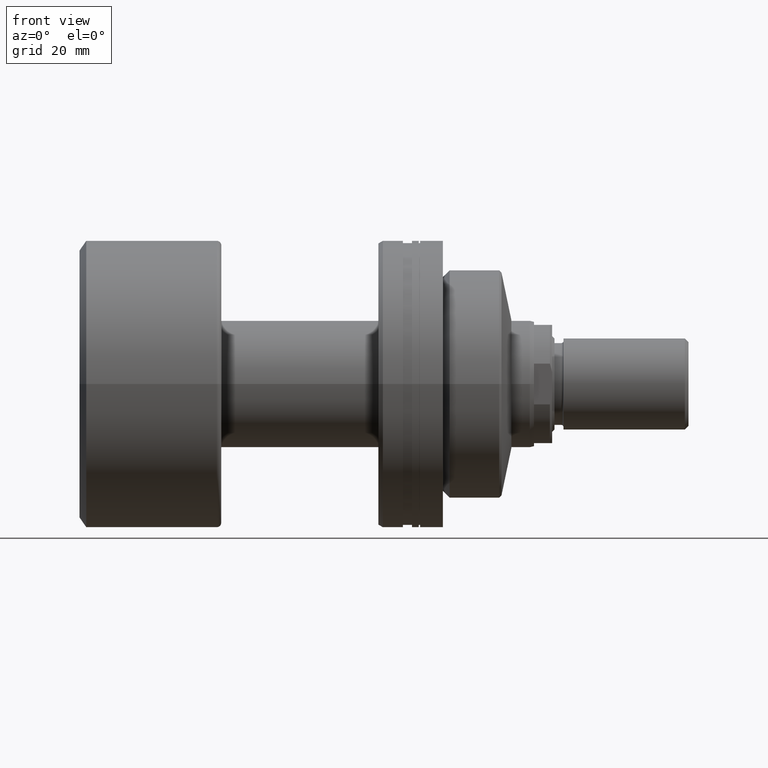
[diagram: clean part render]
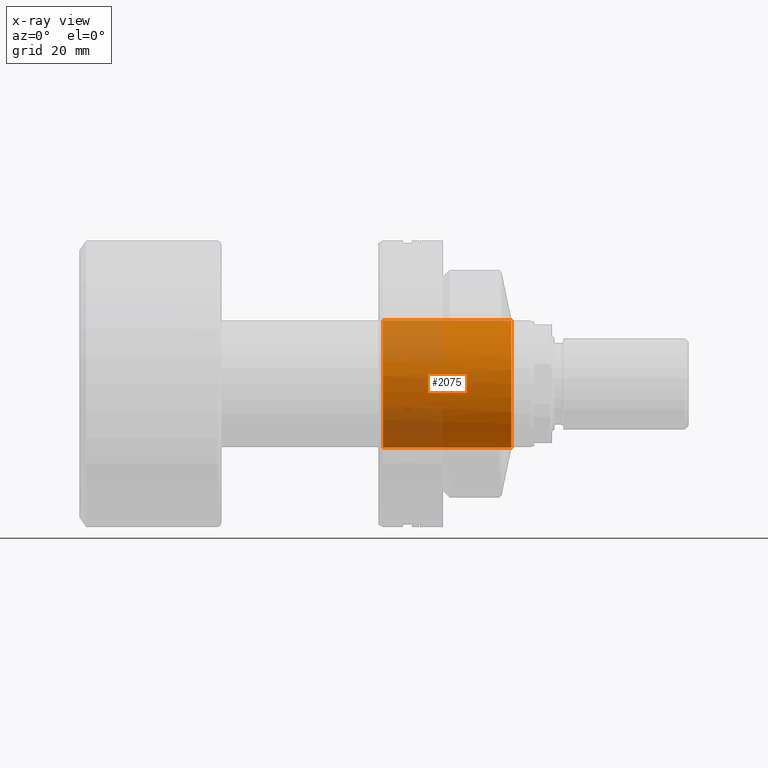
[diagram: x-ray — body ghosted, one internal face saturated and labeled with its STEP entity id]
A machine part, front view, then the same camera in x-ray: the body is ghosted and one INTERNAL B-rep face — a face not visible from any outside direction — is saturated and labeled: STEP entity #2075.
In plain terms, the highlighted cylindrical surface (partial cylindrical patch) has radius 14 mm, axis along (1, 0, 0).
Its self-contained STEP definition (entity closure, byte-faithful):
#2 = DIRECTION ( 'NONE',  ( 0.000000000000000000, 0.000000000000000000, -1.000000000000000000 ) ) ;
#186 = DIRECTION ( 'NONE',  ( 1.000000000000000000, -0.000000000000000000, -0.000000000000000000 ) ) ;
#292 = VERTEX_POINT ( 'NONE', #627 ) ;
#410 = ORIENTED_EDGE ( 'NONE', *, *, #418, .F. ) ;
#418 = EDGE_CURVE ( 'NONE', #292, #697, #872, .T. ) ;
#422 = DIRECTION ( 'NONE',  ( 1.920586705545750655E-15, -1.000000000000000000, 0.000000000000000000 ) ) ;
#609 = DIRECTION ( 'NONE',  ( -1.000000000000000000, -1.931394410353556421E-15, 0.000000000000000000 ) ) ;
#619 = CARTESIAN_POINT ( 'NONE',  ( -71.79797974644668557, 1.714505518806294835E-15, 14.00000000000000178 ) ) ;
#627 = CARTESIAN_POINT ( 'NONE',  ( -2.914285714286086737, -13.99999999999995026, 0.000000000000000000 ) ) ;
#674 = EDGE_LOOP ( 'NONE', ( #1070, #1980, #410, #993, #1352 ) ) ;
#697 = VERTEX_POINT ( 'NONE', #1926 ) ;
#741 = EDGE_CURVE ( 'NONE', #1928, #292, #1058, .T. ) ;
#805 = VECTOR ( 'NONE', #186, 1000.000000000000000 ) ;
#819 = EDGE_CURVE ( 'NONE', #1386, #2508, #2179, .T. ) ;
#821 = CARTESIAN_POINT ( 'NONE',  ( -2.914285714286113826, 5.285403157867643656E-14, 0.000000000000000000 ) ) ;
#850 = CYLINDRICAL_SURFACE ( 'NONE', #2561, 14.00000000000000178 ) ;
#862 = LINE ( 'NONE', #2592, #1430 ) ;
#868 = DIRECTION ( 'NONE',  ( 0.000000000000000000, 0.000000000000000000, -1.000000000000000000 ) ) ;
#872 = CIRCLE ( 'NONE', #1282, 14.00000000000000178 ) ;
#993 = ORIENTED_EDGE ( 'NONE', *, *, #741, .F. ) ;
#1058 = CIRCLE ( 'NONE', #2138, 14.00000000000000178 ) ;
#1070 = ORIENTED_EDGE ( 'NONE', *, *, #819, .T. ) ;
#1268 = DIRECTION ( 'NONE',  ( 1.000000000000000000, -0.000000000000000000, -0.000000000000000000 ) ) ;
#1273 = DIRECTION ( 'NONE',  ( -1.000000000000000000, 0.000000000000000000, 0.000000000000000000 ) ) ;
#1282 = AXIS2_PLACEMENT_3D ( 'NONE', #2377, #1972, #2360 ) ;
#1352 = ORIENTED_EDGE ( 'NONE', *, *, #1946, .F. ) ;
#1386 = VERTEX_POINT ( 'NONE', #2450 ) ;
#1430 = VECTOR ( 'NONE', #1268, 1000.000000000000000 ) ;
#1487 = CARTESIAN_POINT ( 'NONE',  ( -71.79797974644668557, 0.000000000000000000, 0.000000000000000000 ) ) ;
#1542 = CARTESIAN_POINT ( 'NONE',  ( -31.20000000000002061, 1.714505518806294835E-15, 14.00000000000000178 ) ) ;
#1736 = FACE_OUTER_BOUND ( 'NONE', #674, .T. ) ;
#1926 = CARTESIAN_POINT ( 'NONE',  ( -2.914285714286113826, 1.714505518806296807E-15, 14.00000000000000178 ) ) ;
#1928 = VERTEX_POINT ( 'NONE', #2339 ) ;
#1946 = EDGE_CURVE ( 'NONE', #1386, #1928, #862, .T. ) ;
#1972 = DIRECTION ( 'NONE',  ( -1.000000000000000000, -1.931394410353556421E-15, 0.000000000000000000 ) ) ;
#1980 = ORIENTED_EDGE ( 'NONE', *, *, #2714, .T. ) ;
#2075 = ADVANCED_FACE ( 'NONE', ( #1736 ), #850, .F. ) ;
#2135 = AXIS2_PLACEMENT_3D ( 'NONE', #2164, #1273, #868 ) ;
#2138 = AXIS2_PLACEMENT_3D ( 'NONE', #821, #609, #422 ) ;
#2164 = CARTESIAN_POINT ( 'NONE',  ( -31.20000000000002061, 0.000000000000000000, 0.000000000000000000 ) ) ;
#2179 = CIRCLE ( 'NONE', #2135, 14.00000000000000178 ) ;
#2339 = CARTESIAN_POINT ( 'NONE',  ( -2.914285714286113826, 6.162975822039154730E-30, -14.00000000000000178 ) ) ;
#2360 = DIRECTION ( 'NONE',  ( 1.920586705545750655E-15, -1.000000000000000000, 0.000000000000000000 ) ) ;
#2377 = CARTESIAN_POINT ( 'NONE',  ( -2.914285714286113826, 5.285403157867643656E-14, 0.000000000000000000 ) ) ;
#2385 = LINE ( 'NONE', #619, #805 ) ;
#2450 = CARTESIAN_POINT ( 'NONE',  ( -31.20000000000002061, 0.000000000000000000, -14.00000000000000178 ) ) ;
#2508 = VERTEX_POINT ( 'NONE', #1542 ) ;
#2561 = AXIS2_PLACEMENT_3D ( 'NONE', #1487, #2607, #2 ) ;
#2592 = CARTESIAN_POINT ( 'NONE',  ( -71.79797974644668557, 0.000000000000000000, -14.00000000000000178 ) ) ;
#2607 = DIRECTION ( 'NONE',  ( 1.000000000000000000, -0.000000000000000000, -0.000000000000000000 ) ) ;
#2714 = EDGE_CURVE ( 'NONE', #2508, #697, #2385, .T. ) ;